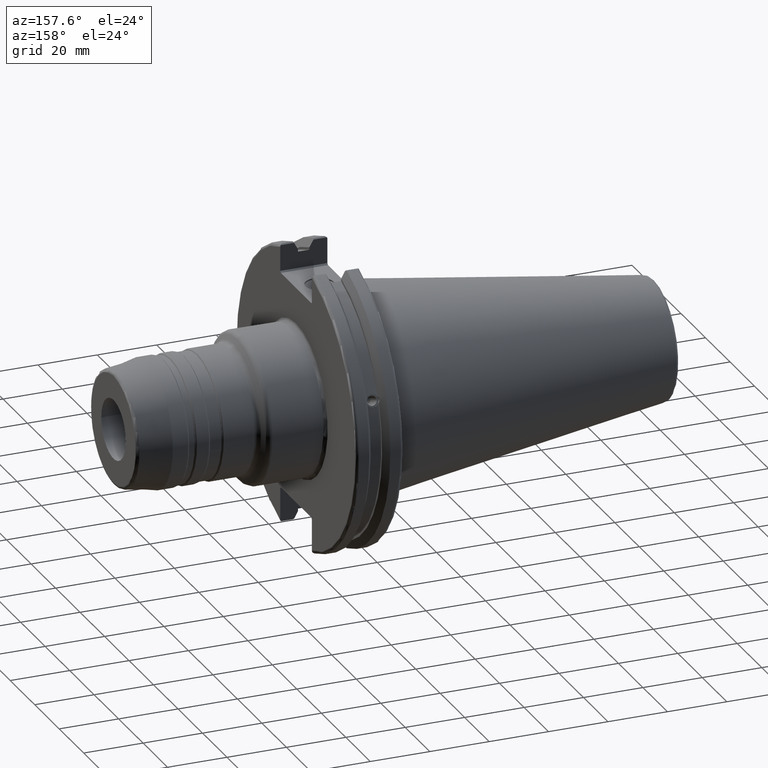
[diagram: clean part render]
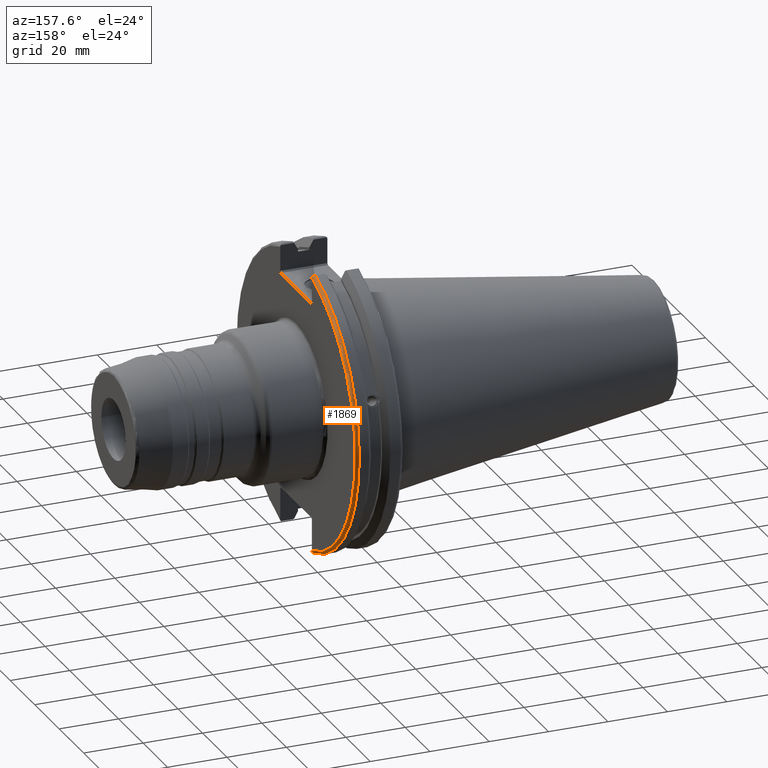
[diagram: same view with one face highlighted and labeled with its STEP entity id]
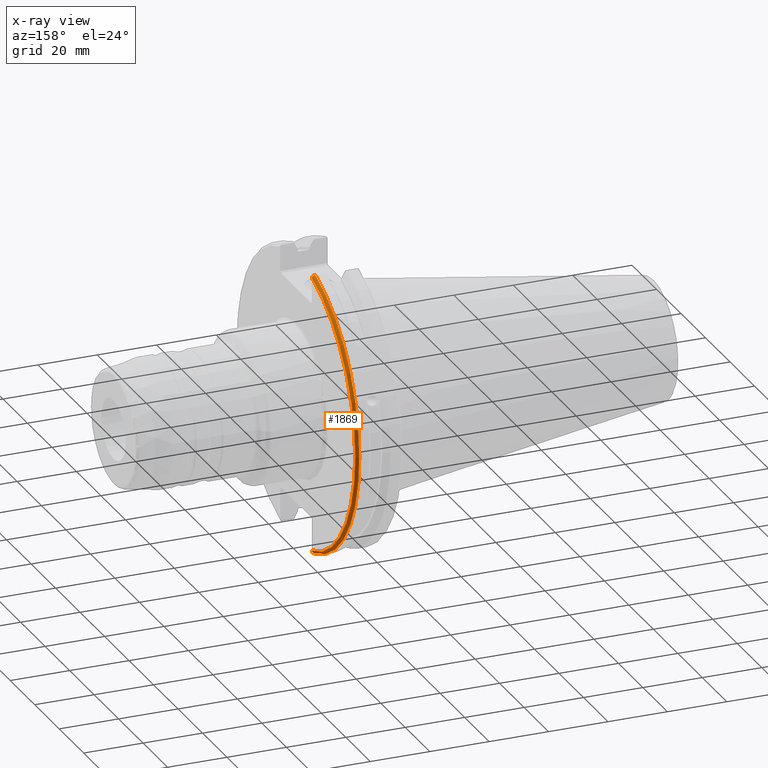
[diagram: x-ray of the same camera — body ghosted, the highlighted face saturated]
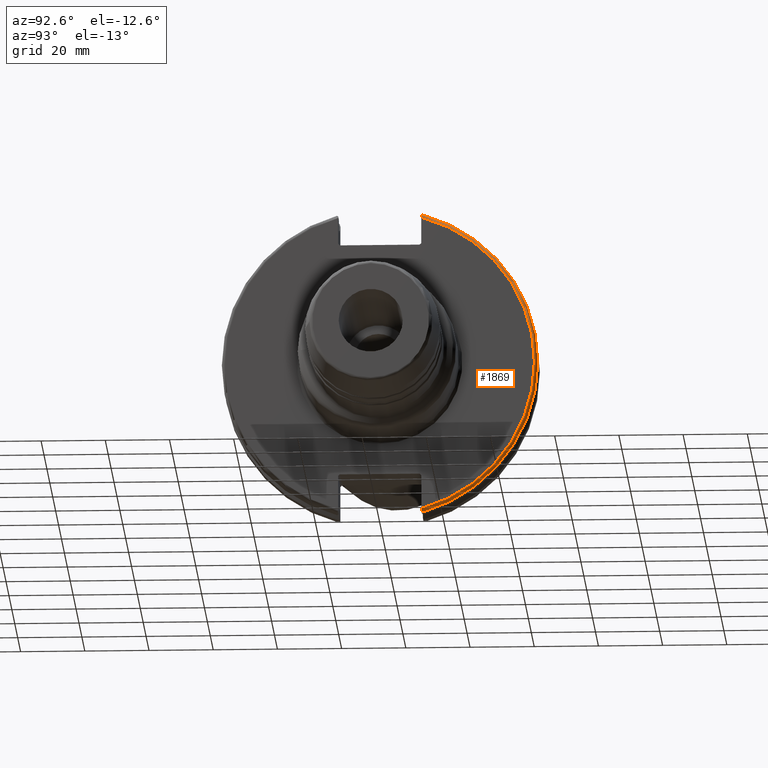
[diagram: same view with one face highlighted and labeled with its STEP entity id]
A machine part, auxiliary view. The second image highlights one B-rep face of the part: STEP entity #1869.
The next image is the same camera in x-ray: the body ghosted, the highlighted face saturated — about 0% of this face is hidden behind the body in this view.
A second angle (auxiliary view) of the same face is appended — the face is thin or edge-on in the first view.
In plain terms, the highlighted toroidal blend (fillet) surface has major radius 48.2125 mm and minor (blend) radius 1 mm.
Its self-contained STEP definition (entity closure, byte-faithful):
#84=TOROIDAL_SURFACE('',#2105,48.2125,1.);
#149=B_SPLINE_CURVE_WITH_KNOTS('',3,(#3524,#3525,#3526,#3527,#3528,#3529),
 .UNSPECIFIED.,.F.,.F.,(4,2,4),(0.0976892167532868,0.112000071948293,0.150881870548587),
 .UNSPECIFIED.);
#150=B_SPLINE_CURVE_WITH_KNOTS('',3,(#3531,#3532,#3533,#3534,#3535,#3536),
 .UNSPECIFIED.,.F.,.F.,(4,2,4),(0.452859340315922,0.491741138916218,0.506051994111223),
 .UNSPECIFIED.);
#151=B_SPLINE_CURVE_WITH_KNOTS('',3,(#3538,#3539,#3540,#3541,#3542,#3543,
#3544,#3545),.UNSPECIFIED.,.F.,.F.,(4,2,2,4),(-0.104075769062722,-0.0730268503455479,
-0.0343639873656263,0.),.UNSPECIFIED.);
#152=B_SPLINE_CURVE_WITH_KNOTS('',3,(#3548,#3549,#3550,#3551,#3552,#3553,
#3554,#3555),.UNSPECIFIED.,.F.,.F.,(4,2,2,4),(0.,0.0343639873656263,0.0730268503455477,
0.104075769062723),.UNSPECIFIED.);
#228=FACE_OUTER_BOUND('',#351,.T.);
#351=EDGE_LOOP('',(#1556,#1557,#1558,#1559,#1560,#1561));
#662=CIRCLE('',#2022,48.2125);
#706=CIRCLE('',#2106,49.2125);
#782=VERTEX_POINT('',#2972);
#783=VERTEX_POINT('',#2973);
#879=VERTEX_POINT('',#3523);
#880=VERTEX_POINT('',#3530);
#881=VERTEX_POINT('',#3537);
#882=VERTEX_POINT('',#3546);
#998=EDGE_CURVE('',#782,#783,#662,.T.);
#1122=EDGE_CURVE('',#879,#782,#149,.T.);
#1123=EDGE_CURVE('',#783,#880,#150,.T.);
#1124=EDGE_CURVE('',#880,#881,#151,.T.);
#1125=EDGE_CURVE('',#881,#882,#706,.T.);
#1126=EDGE_CURVE('',#882,#879,#152,.T.);
#1556=ORIENTED_EDGE('',*,*,#1122,.T.);
#1557=ORIENTED_EDGE('',*,*,#998,.T.);
#1558=ORIENTED_EDGE('',*,*,#1123,.T.);
#1559=ORIENTED_EDGE('',*,*,#1124,.T.);
#1560=ORIENTED_EDGE('',*,*,#1125,.T.);
#1561=ORIENTED_EDGE('',*,*,#1126,.T.);
#1869=ADVANCED_FACE('',(#228),#84,.T.);
#2022=AXIS2_PLACEMENT_3D('',#2974,#2360,#2361);
#2105=AXIS2_PLACEMENT_3D('',#3522,#2578,#2579);
#2106=AXIS2_PLACEMENT_3D('',#3547,#2580,#2581);
#2360=DIRECTION('center_axis',(-1.,0.,0.));
#2361=DIRECTION('ref_axis',(0.,1.,-6.12323399573677E-17));
#2578=DIRECTION('center_axis',(1.,0.,0.));
#2579=DIRECTION('ref_axis',(0.,0.,-1.));
#2580=DIRECTION('center_axis',(1.,0.,0.));
#2581=DIRECTION('ref_axis',(0.,1.,-6.12323399573677E-17));
#2972=CARTESIAN_POINT('',(19.05,12.95,46.4407434937254));
#2973=CARTESIAN_POINT('',(19.05,12.95,-46.4407434937254));
#2974=CARTESIAN_POINT('Origin',(19.05,0.,0.));
#3522=CARTESIAN_POINT('Origin',(18.05,0.,0.));
#3523=CARTESIAN_POINT('',(18.9055020570566,12.95,46.9780755322918));
#3524=CARTESIAN_POINT('Ctrl Pts',(18.9055020570566,12.95,46.9780755322918));
#3525=CARTESIAN_POINT('Ctrl Pts',(18.9315844351616,12.95,46.9333752207329));
#3526=CARTESIAN_POINT('Ctrl Pts',(18.9538432708766,12.95,46.887363294568));
#3527=CARTESIAN_POINT('Ctrl Pts',(19.0204646992875,12.95,46.7230464903732));
#3528=CARTESIAN_POINT('Ctrl Pts',(19.05,12.95,46.5703494890597));
#3529=CARTESIAN_POINT('Ctrl Pts',(19.05,12.95,46.4407434937254));
#3530=CARTESIAN_POINT('',(18.9055020570566,12.95,-46.9780755322918));
#3531=CARTESIAN_POINT('Ctrl Pts',(19.05,12.95,-46.4407434937254));
#3532=CARTESIAN_POINT('Ctrl Pts',(19.05,12.95,-46.5703494890597));
#3533=CARTESIAN_POINT('Ctrl Pts',(19.0204646992875,12.95,-46.7230464903732));
#3534=CARTESIAN_POINT('Ctrl Pts',(18.9538432708766,12.95,-46.887363294568));
#3535=CARTESIAN_POINT('Ctrl Pts',(18.9315844351616,12.95,-46.9333752207329));
#3536=CARTESIAN_POINT('Ctrl Pts',(18.9055020570566,12.95,-46.9780755322918));
#3537=CARTESIAN_POINT('',(18.05,13.4317035994433,-47.3440544806494));
#3538=CARTESIAN_POINT('Ctrl Pts',(18.9055020570566,12.95,-46.9780755322918));
#3539=CARTESIAN_POINT('Ctrl Pts',(18.8571496772125,13.0300321736484,-47.0388807469102));
#3540=CARTESIAN_POINT('Ctrl Pts',(18.792640282015,13.1083611826073,-47.0983919657547));
#3541=CARTESIAN_POINT('Ctrl Pts',(18.6399248789208,13.2478194810695,-47.2043467509586));
#3542=CARTESIAN_POINT('Ctrl Pts',(18.5186188350904,13.3242014686232,-47.2623787015413));
#3543=CARTESIAN_POINT('Ctrl Pts',(18.2983889675417,13.4067722493645,-47.3251126473446));
#3544=CARTESIAN_POINT('Ctrl Pts',(18.1645466245521,13.4317035994433,-47.3440544806494));
#3545=CARTESIAN_POINT('Ctrl Pts',(18.05,13.4317035994433,-47.3440544806494));
#3546=CARTESIAN_POINT('',(18.05,13.4317035994433,47.3440544806494));
#3547=CARTESIAN_POINT('Origin',(18.05,0.,0.));
#3548=CARTESIAN_POINT('Ctrl Pts',(18.05,13.4317035994433,47.3440544806494));
#3549=CARTESIAN_POINT('Ctrl Pts',(18.1645466245521,13.4317035994433,47.3440544806494));
#3550=CARTESIAN_POINT('Ctrl Pts',(18.2983889675417,13.4067722493645,47.3251126473446));
#3551=CARTESIAN_POINT('Ctrl Pts',(18.5186188350904,13.3242014686233,47.2623787015413));
#3552=CARTESIAN_POINT('Ctrl Pts',(18.6399248789208,13.2478194810695,47.2043467509586));
#3553=CARTESIAN_POINT('Ctrl Pts',(18.792640282015,13.1083611826073,47.0983919657547));
#3554=CARTESIAN_POINT('Ctrl Pts',(18.8571496772125,13.0300321736484,47.0388807469102));
#3555=CARTESIAN_POINT('Ctrl Pts',(18.9055020570566,12.95,46.9780755322918));